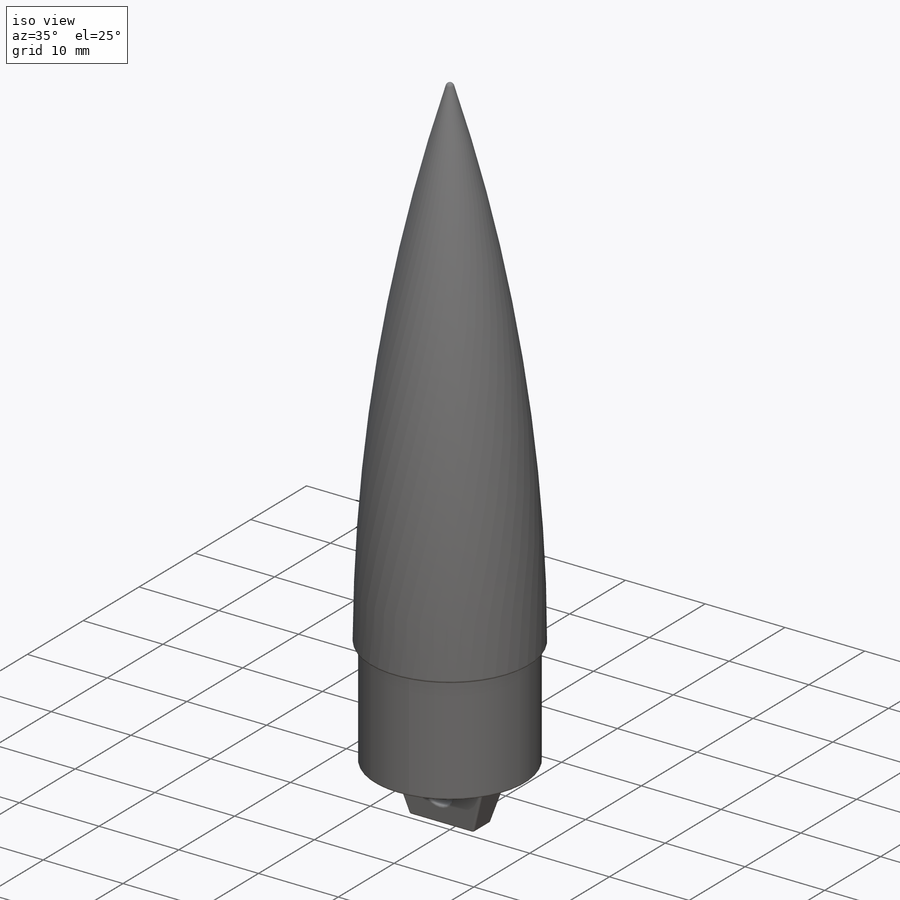
[diagram: iso view]
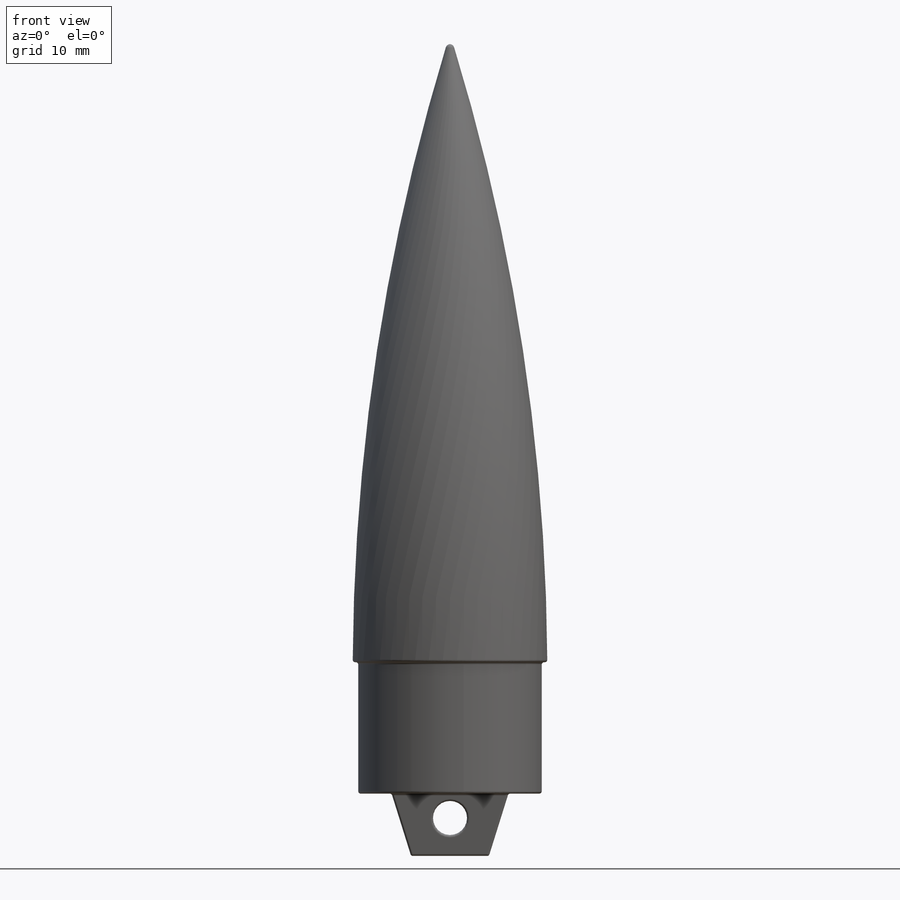
[diagram: front view]
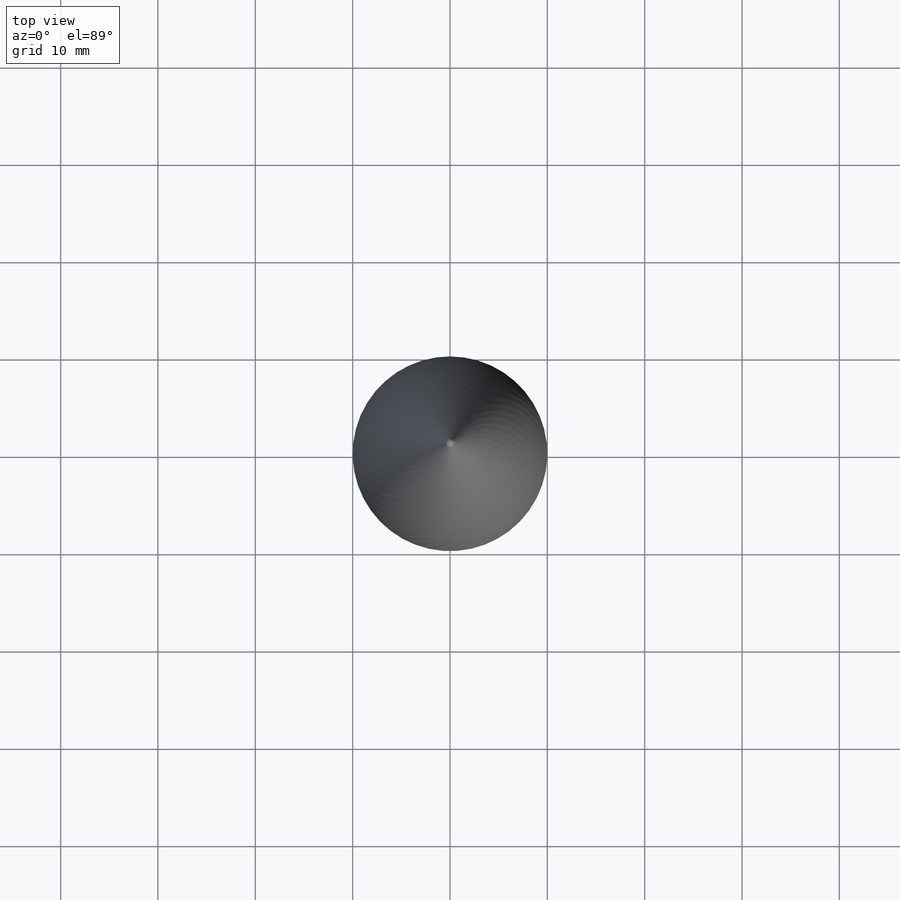
[diagram: top view]
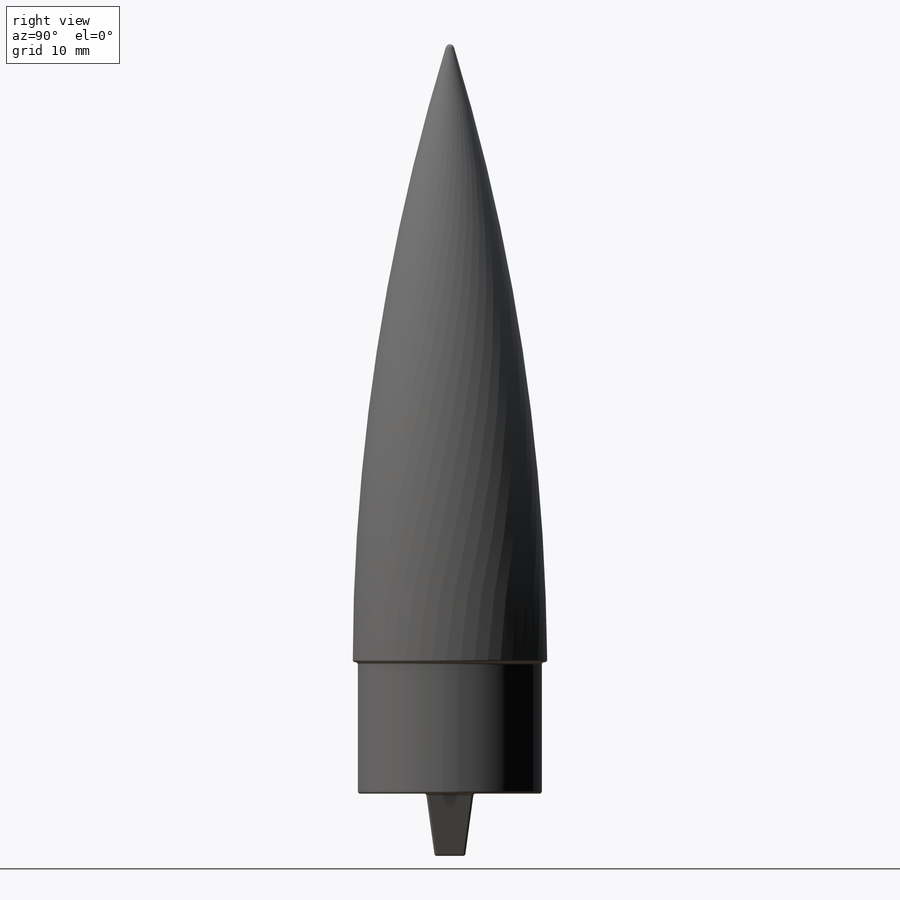
[diagram: right view]
SOLIDWORKS PART (.sldprt)
format: sldprt  version: not decoded by parser v0  size: 688,640 bytes
history: native  units: mm
features: sketch x8, cut_extrude x5, plane x3, fillet x2, material x1, revolve x1, cut_revolve x1, extrude x1 (+10 scaffold rows collapsed)
feature tree (32):
  scaffold x10  (default folders/planes/origin — collapsed)
  material  "ABS"
  plane  "Frontal Plane"
  plane  "Horizontal Plane"
  plane  "Profile Plane"
  sketch  "Sketch1"  dims[c1.D1=10.0mm c1.D2=10.0mm c1.D3=10.0mm c1.D4=10.0mm c1.D5=10.0mm c1.D6=77.0mm c1.D7=13.5mm c1.D8=8.0mm c1.D9=13.3mm c1.D10=16.0mm c1.D11=18.25mm c1.D12=19.45mm c1.D13=20.0mm c1.D14=18.9mm c1.D15=0.35mm c2.D13=20.0mm]
  revolve  "Revolve1"  Angle=360deg
  sketch  "Sketch5"  dims[c1.D1=1.0mm c1.D2=1.0mm c1.D3=1.0mm c1.D4=1.0mm c2.D1=1.0mm]
  cut_revolve  "Cut-Revolve1"  Angle=360deg
  sketch  "Sketch6"  dims[D1=10.0mm D2=2.87mm]
  cut_extrude  "Cut-Extrude3"  [1 undecoded]
  sketch  "Sketch2"  dims[D1=8.0mm D2=12.0mm D3=6.4mm]
  extrude  "Boss-Extrude1"  Depth=4.87mm
  sketch  "Sketch3"  dims[D1=3.13mm]
  cut_extrude  "Cut-Extrude1"  [1 undecoded]
  sketch  "Sketch4"  dims[D1=3.5mm D2=2.5mm]
  cut_extrude  "Cut-Extrude2"  [1 undecoded]
  sketch  "Sketch7"  dims[c1.D2=~3.832197mm c1.D1=1.0mm c2.D2=1.0mm]
  cut_extrude  "Cut-Extrude4"  Depth=1mm
  sketch  "Sketch8"  dims[D2=8.0mm D1=3.0mm]
  cut_extrude  "Cut-Extrude5"  [1 undecoded]
  fillet  "Fillet2"  Radius=0.25mm ModelUUID=0mm UUID=0mm
  fillet  "c124f6fb-f292-4275-b535-781773dbc00a"  Radius=0mm UUID=0mm ModelUUID=0mm
decode coverage: 14 of 18 modeling features carry decoded parameters
note: ~ marks probable driven/reference dimensions
note: 4 parameter values undecoded
summary: no parameter record found for 4 features
note: suppression state not decoded; provenance and decode notes live in map.json
